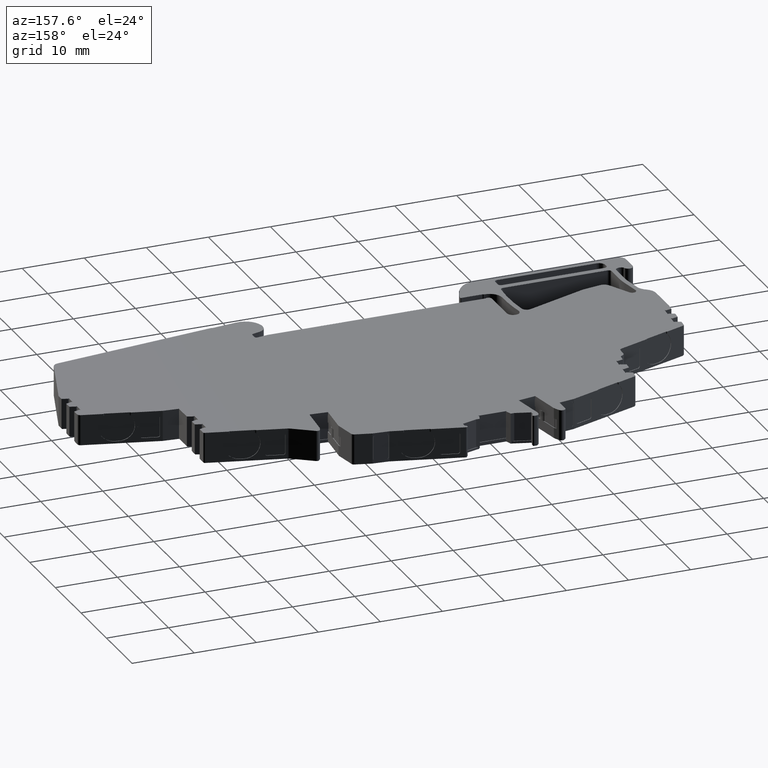
[diagram: clean part render]
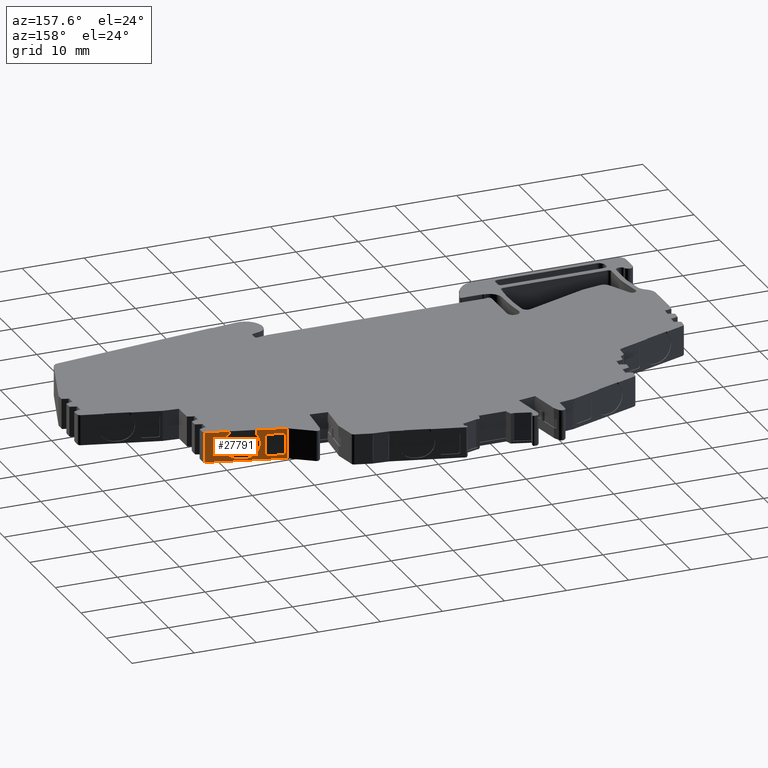
[diagram: same view with one face highlighted and labeled with its STEP entity id]
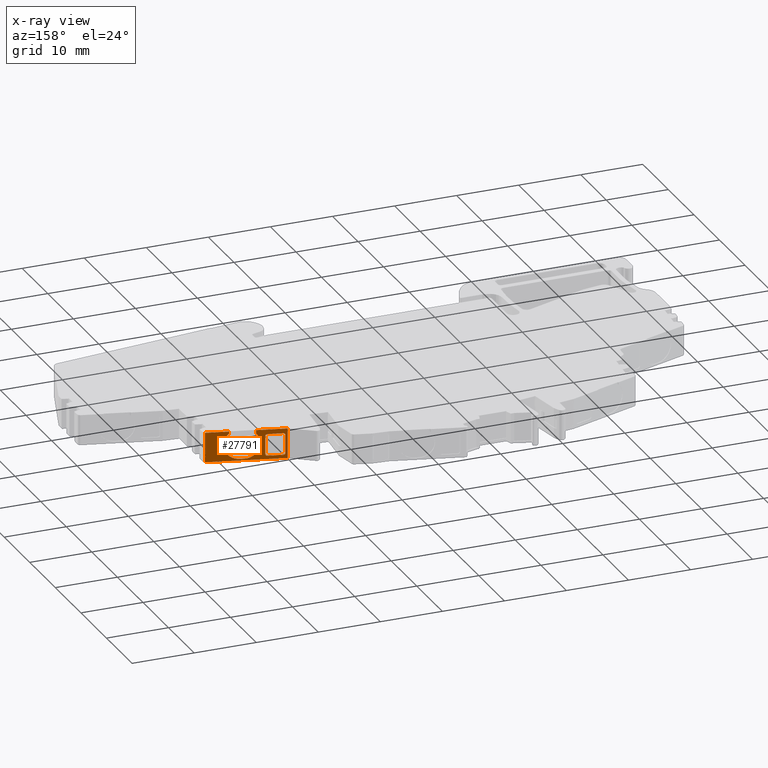
[diagram: x-ray of the same camera — body ghosted, the highlighted face saturated]
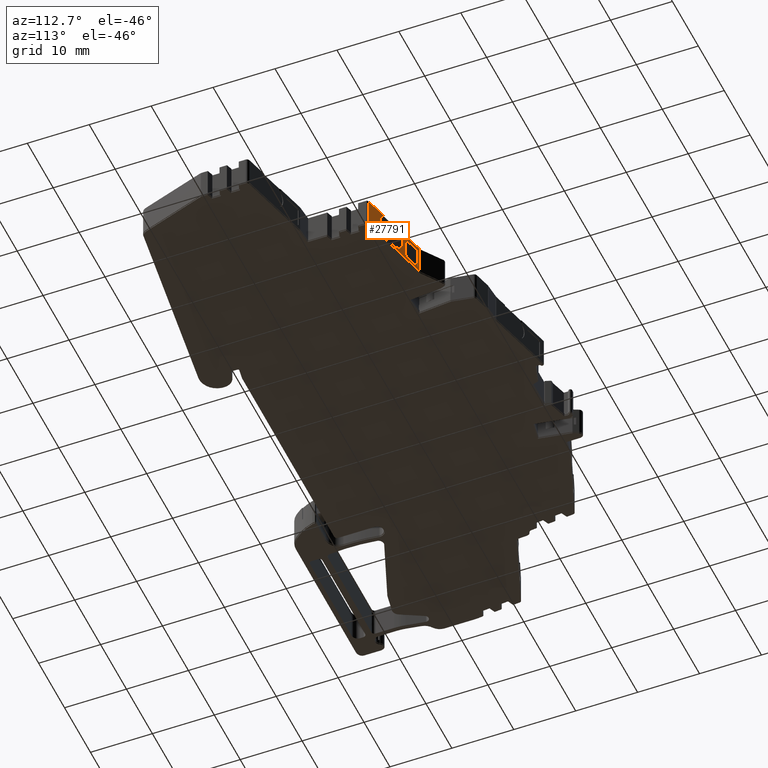
[diagram: same view with one face highlighted and labeled with its STEP entity id]
A machine part, auxiliary view. The second image highlights one B-rep face of the part: STEP entity #27791.
The next image is the same camera in x-ray: the body ghosted, the highlighted face saturated — about 0% of this face is hidden behind the body in this view.
A second angle (auxiliary view) of the same face is appended — the face is thin or edge-on in the first view.
In plain terms, the highlighted planar face has unit normal (-0.2592, -0.9658, 0).
Its self-contained STEP definition (entity closure, byte-faithful):
#186 = VECTOR ( 'NONE', #13042, 1000.000000000000000 ) ;
#674 = CARTESIAN_POINT ( 'NONE',  ( -15.61591712863480400, 12.21445229525749600, 24.37509204364099300 ) ) ;
#688 = ORIENTED_EDGE ( 'NONE', *, *, #3990, .F. ) ;
#1070 = EDGE_LOOP ( 'NONE', ( #7072, #12519, #18732, #15447, #688, #23701, #18821, #24131 ) ) ;
#1263 = EDGE_CURVE ( 'NONE', #18861, #17649, #20730, .T. ) ;
#1282 = VERTEX_POINT ( 'NONE', #9829 ) ;
#1288 = CARTESIAN_POINT ( 'NONE',  ( -18.24386508577786300, 12.91967311282621700, 21.17509204364099800 ) ) ;
#1443 = ORIENTED_EDGE ( 'NONE', *, *, #18065, .T. ) ;
#1605 = VECTOR ( 'NONE', #2083, 1000.000000000000000 ) ;
#2015 = CARTESIAN_POINT ( 'NONE',  ( -15.61591712863480000, 12.21445229525749600, 20.87509204364099300 ) ) ;
#2064 = CARTESIAN_POINT ( 'NONE',  ( -15.61591712863480400, 12.21445229525749600, 24.37509204364099300 ) ) ;
#2083 = DIRECTION ( 'NONE',  ( 0.0000000000000000000, 0.0000000000000000000, -1.000000000000000000 ) ) ;
#2742 = CARTESIAN_POINT ( 'NONE',  ( -18.24386508577786300, 12.91967311282621700, 24.07509204364099600 ) ) ;
#3017 = LINE ( 'NONE', #13011, #20755 ) ;
#3182 = CARTESIAN_POINT ( 'NONE',  ( -11.59844444603706000, 11.13634671022084900, 20.57509204364099300 ) ) ;
#3215 = CARTESIAN_POINT ( 'NONE',  ( -17.94565780241363500, 12.83964794200521600, 24.37509204364099300 ) ) ;
#3564 = EDGE_CURVE ( 'NONE', #15323, #29325, #24262, .T. ) ;
#3902 = DIRECTION ( 'NONE',  ( -0.9658279704094783200, 0.2591839724495090300, -0.0000000000000000000 ) ) ;
#3926 = ORIENTED_EDGE ( 'NONE', *, *, #11185, .T. ) ;
#3990 = EDGE_CURVE ( 'NONE', #18861, #8986, #29179, .T. ) ;
#4020 = DIRECTION ( 'NONE',  ( -0.0000000000000000000, -0.0000000000000000000, -1.000000000000000000 ) ) ;
#4063 = EDGE_CURVE ( 'NONE', #1282, #17649, #16856, .T. ) ;
#4161 = CARTESIAN_POINT ( 'NONE',  ( -18.24386508577786300, 12.91967311282621200, 24.25082797492906600 ) ) ;
#4311 = VERTEX_POINT ( 'NONE', #12755 ) ;
#4420 = CARTESIAN_POINT ( 'NONE',  ( -15.32167927772824400, 12.13549233822639200, 24.07509204364099600 ) ) ;
#4467 = CARTESIAN_POINT ( 'NONE',  ( -18.56393167721689300, 13.00556432032807700, 24.37509204364099300 ) ) ;
#4860 = EDGE_CURVE ( 'NONE', #21905, #12593, #29448, .T. ) ;
#5206 = EDGE_CURVE ( 'NONE', #21905, #17814, #3017, .T. ) ;
#5355 = CARTESIAN_POINT ( 'NONE',  ( -6.571322172358326200, 9.787297437679015400, 25.12509204364099700 ) ) ;
#5543 = AXIS2_PLACEMENT_3D ( 'NONE', #17181, #28929, #12808 ) ;
#5699 = CARTESIAN_POINT ( 'NONE',  ( -10.04479262381814700, 10.71941775038197000, 25.12509204364099700 ) ) ;
#5838 = DIRECTION ( 'NONE',  ( 0.0000000000000000000, 0.0000000000000000000, 1.000000000000000000 ) ) ;
#6318 = CARTESIAN_POINT ( 'NONE',  ( -14.61550843732582400, 11.94598844182762900, 22.97509204364098800 ) ) ;
#6321 = VECTOR ( 'NONE', #22928, 1000.000000000000000 ) ;
#6523 = ORIENTED_EDGE ( 'NONE', *, *, #22581, .F. ) ;
#6627 =( BOUNDED_CURVE ( )  B_SPLINE_CURVE ( 3, ( #20269, #24695, #27118, #6318 ),
 .UNSPECIFIED., .F., .F. ) 
 B_SPLINE_CURVE_WITH_KNOTS ( ( 4, 4 ),
 ( 5.539587366614141800, 6.283185307179586200 ),
 .UNSPECIFIED. ) 
 CURVE ( )  GEOMETRIC_REPRESENTATION_ITEM ( )  RATIONAL_B_SPLINE_CURVE ( ( 1.000000000000000000, 0.9544502012658107000, 0.9544502012658107000, 1.000000000000000000 ) ) 
 REPRESENTATION_ITEM ( '' )  );
#6911 = VERTEX_POINT ( 'NONE', #3182 ) ;
#7072 = ORIENTED_EDGE ( 'NONE', *, *, #25804, .F. ) ;
#7157 = VERTEX_POINT ( 'NONE', #3215 ) ;
#7283 = CARTESIAN_POINT ( 'NONE',  ( -18.56393167721689300, 13.00556432032807700, 20.32509204364099600 ) ) ;
#7436 = CARTESIAN_POINT ( 'NONE',  ( -6.571322172358326200, 9.787297437679015400, 20.32509204364099600 ) ) ;
#7657 = EDGE_CURVE ( 'NONE', #4311, #6911, #21203, .T. ) ;
#8031 = VECTOR ( 'NONE', #13108, 1000.000000000000000 ) ;
#8144 = VERTEX_POINT ( 'NONE', #16944 ) ;
#8207 = CARTESIAN_POINT ( 'NONE',  ( -14.61550843732582200, 11.94598844182763000, 21.56920459333641600 ) ) ;
#8870 = LINE ( 'NONE', #15781, #186 ) ;
#8986 = VERTEX_POINT ( 'NONE', #2742 ) ;
#9025 = VERTEX_POINT ( 'NONE', #674 ) ;
#9707 = VECTOR ( 'NONE', #28482, 1000.000000000000100 ) ;
#9829 = CARTESIAN_POINT ( 'NONE',  ( -15.61591712863480000, 12.21445229525749600, 20.87509204364099300 ) ) ;
#9902 = EDGE_CURVE ( 'NONE', #7157, #8986, #28795, .T. ) ;
#10648 = VECTOR ( 'NONE', #18355, 1000.000000000000000 ) ;
#10652 = ORIENTED_EDGE ( 'NONE', *, *, #27926, .T. ) ;
#10674 = CARTESIAN_POINT ( 'NONE',  ( -15.32167927772824400, 12.13549233822639200, 21.17509204364099800 ) ) ;
#11185 = EDGE_CURVE ( 'NONE', #6911, #20575, #11886, .T. ) ;
#11259 = CARTESIAN_POINT ( 'NONE',  ( -15.44355658613725200, 12.16819862331307300, 24.37509204364100100 ) ) ;
#11294 = CARTESIAN_POINT ( 'NONE',  ( -10.04479262381814700, 10.71941775038197300, 24.77806142693621900 ) ) ;
#11851 = VECTOR ( 'NONE', #15842, 1000.000000000000000 ) ;
#11886 =( BOUNDED_CURVE ( )  B_SPLINE_CURVE ( 3, ( #24822, #20592, #18225, #11294 ),
 .UNSPECIFIED., .F., .T. ) 
 B_SPLINE_CURVE_WITH_KNOTS ( ( 4, 4 ),
 ( 1.570796326794896600, 3.991527257231686700 ),
 .UNSPECIFIED. ) 
 CURVE ( )  GEOMETRIC_REPRESENTATION_ITEM ( )  RATIONAL_B_SPLINE_CURVE ( ( 1.000000000000000000, 0.5684516283634089000, 0.5684516283634089000, 1.000000000000000000 ) ) 
 REPRESENTATION_ITEM ( '' )  );
#11991 = FACE_BOUND ( 'NONE', #1070, .T. ) ;
#12208 = VERTEX_POINT ( 'NONE', #15884 ) ;
#12501 = VECTOR ( 'NONE', #4020, 1000.000000000000000 ) ;
#12519 = ORIENTED_EDGE ( 'NONE', *, *, #28581, .T. ) ;
#12571 = LINE ( 'NONE', #4467, #11851 ) ;
#12593 = VERTEX_POINT ( 'NONE', #5699 ) ;
#12755 = CARTESIAN_POINT ( 'NONE',  ( -12.26160563598441300, 11.31430878716507500, 20.57509204364098900 ) ) ;
#12808 = DIRECTION ( 'NONE',  ( 0.9658279704094783200, -0.2591839724495090300, 0.0000000000000000000 ) ) ;
#13011 = CARTESIAN_POINT ( 'NONE',  ( -6.571322172358326200, 9.787297437679015400, 25.17509204364099800 ) ) ;
#13042 = DIRECTION ( 'NONE',  ( 0.0000000000000000000, 0.0000000000000000000, -1.000000000000000000 ) ) ;
#13108 = DIRECTION ( 'NONE',  ( 0.9658279704094783200, -0.2591839724495090300, 9.474192395200493500E-015 ) ) ;
#13120 = CARTESIAN_POINT ( 'NONE',  ( -18.56393167721689300, 13.00556432032807700, 25.17509204364099800 ) ) ;
#13210 = CARTESIAN_POINT ( 'NONE',  ( -18.56393167721685000, 13.00556432032806400, 20.57509204364092900 ) ) ;
#13374 = VERTEX_POINT ( 'NONE', #18484 ) ;
#13434 = EDGE_CURVE ( 'NONE', #9025, #7157, #12571, .T. ) ;
#13842 = VECTOR ( 'NONE', #20096, 1000.000000000000000 ) ;
#13912 = CARTESIAN_POINT ( 'NONE',  ( -18.56393167721689300, 13.00556432032807700, 25.12509204364099700 ) ) ;
#13958 = LINE ( 'NONE', #19675, #25620 ) ;
#14004 =( BOUNDED_CURVE ( )  B_SPLINE_CURVE ( 3, ( #2015, #29856, #23081, #29762 ),
 .UNSPECIFIED., .F., .F. ) 
 B_SPLINE_CURVE_WITH_KNOTS ( ( 4, 4 ),
 ( 4.712388980384683500, 6.283185307179586200 ),
 .UNSPECIFIED. ) 
 CURVE ( )  GEOMETRIC_REPRESENTATION_ITEM ( )  RATIONAL_B_SPLINE_CURVE ( ( 1.000000000000000000, 0.8047378541243634900, 0.8047378541243634900, 1.000000000000000000 ) ) 
 REPRESENTATION_ITEM ( '' )  );
#14899 = FACE_OUTER_BOUND ( 'NONE', #18383, .T. ) ;
#15026 = LINE ( 'NONE', #13120, #12501 ) ;
#15245 = CARTESIAN_POINT ( 'NONE',  ( -14.61550843732582400, 11.94598844182762900, 22.97509204364098800 ) ) ;
#15323 = VERTEX_POINT ( 'NONE', #28154 ) ;
#15447 = ORIENTED_EDGE ( 'NONE', *, *, #9902, .T. ) ;
#15781 = CARTESIAN_POINT ( 'NONE',  ( -15.32167927772824400, 12.13549233822639200, 25.17509204364099800 ) ) ;
#15842 = DIRECTION ( 'NONE',  ( -0.9658279704094783200, 0.2591839724495090300, 0.0000000000000000000 ) ) ;
#15884 = CARTESIAN_POINT ( 'NONE',  ( -15.32167927772824400, 12.13549233822639200, 24.07509204364099600 ) ) ;
#16378 = ORIENTED_EDGE ( 'NONE', *, *, #4860, .F. ) ;
#16735 = CARTESIAN_POINT ( 'NONE',  ( -18.24386508577786300, 12.91967311282622400, 20.99935611235292800 ) ) ;
#16852 = EDGE_CURVE ( 'NONE', #1282, #27355, #14004, .T. ) ;
#16856 = LINE ( 'NONE', #25271, #10648 ) ;
#16944 = CARTESIAN_POINT ( 'NONE',  ( -14.61550843732582400, 11.94598844182762900, 22.97509204364098800 ) ) ;
#17181 = CARTESIAN_POINT ( 'NONE',  ( -18.56393167721689300, 13.00556432032807700, 25.17509204364099800 ) ) ;
#17649 = VERTEX_POINT ( 'NONE', #27363 ) ;
#17814 = VERTEX_POINT ( 'NONE', #7436 ) ;
#17950 = CARTESIAN_POINT ( 'NONE',  ( -18.24386508577786300, 12.91967311282621700, 24.07509204364099600 ) ) ;
#18065 = EDGE_CURVE ( 'NONE', #20575, #12593, #13958, .T. ) ;
#18225 = CARTESIAN_POINT ( 'NONE',  ( -8.104182214791510600, 10.19864683651504000, 23.03966374073549900 ) ) ;
#18355 = DIRECTION ( 'NONE',  ( -0.9658279704094783200, 0.2591839724495090300, 0.0000000000000000000 ) ) ;
#18383 = EDGE_LOOP ( 'NONE', ( #16378, #21679, #27295, #6523, #20444, #22428, #10652, #24149, #30045, #3926, #1443 ) ) ;
#18484 = CARTESIAN_POINT ( 'NONE',  ( -13.99416692543901200, 11.77924885027248600, 24.59974926163182800 ) ) ;
#18732 = ORIENTED_EDGE ( 'NONE', *, *, #13434, .T. ) ;
#18821 = ORIENTED_EDGE ( 'NONE', *, *, #4063, .F. ) ;
#18861 = VERTEX_POINT ( 'NONE', #1288 ) ;
#19047 = CARTESIAN_POINT ( 'NONE',  ( -10.04479262381814700, 10.71941775038197300, 24.77806142693621900 ) ) ;
#19567 = EDGE_CURVE ( 'NONE', #8144, #4311, #27324, .T. ) ;
#19675 = CARTESIAN_POINT ( 'NONE',  ( -10.04479262381814700, 10.71941775038197300, 25.17509204364099800 ) ) ;
#19760 = EDGE_CURVE ( 'NONE', #15323, #13374, #24098, .T. ) ;
#20027 = CARTESIAN_POINT ( 'NONE',  ( -17.94565780241363500, 12.83964794200521600, 24.37509204364099300 ) ) ;
#20061 = DIRECTION ( 'NONE',  ( -0.0000000000000000000, -0.0000000000000000000, -1.000000000000000000 ) ) ;
#20096 = DIRECTION ( 'NONE',  ( -0.9658279704094783200, 0.2591839724495090300, -0.0000000000000000000 ) ) ;
#20253 =( BOUNDED_CURVE ( )  B_SPLINE_CURVE ( 3, ( #4420, #20703, #11259, #2064 ),
 .UNSPECIFIED., .F., .F. ) 
 B_SPLINE_CURVE_WITH_KNOTS ( ( 4, 4 ),
 ( 3.141592653589793100, 4.712388980384689700 ),
 .UNSPECIFIED. ) 
 CURVE ( )  GEOMETRIC_REPRESENTATION_ITEM ( )  RATIONAL_B_SPLINE_CURVE ( ( 1.000000000000000000, 0.8047378541243649400, 0.8047378541243649400, 1.000000000000000000 ) ) 
 REPRESENTATION_ITEM ( '' )  );
#20269 = CARTESIAN_POINT ( 'NONE',  ( -13.99416692543901200, 11.77924885027248600, 24.59974926163182800 ) ) ;
#20444 = ORIENTED_EDGE ( 'NONE', *, *, #3564, .F. ) ;
#20575 = VERTEX_POINT ( 'NONE', #19047 ) ;
#20592 = CARTESIAN_POINT ( 'NONE',  ( -9.015225327167918600, 10.44312906334304500, 20.57509204364099600 ) ) ;
#20703 = CARTESIAN_POINT ( 'NONE',  ( -15.32167927772824500, 12.13549233822639400, 24.25082797492906600 ) ) ;
#20730 =( BOUNDED_CURVE ( )  B_SPLINE_CURVE ( 3, ( #21361, #16735, #23756, #26106 ),
 .UNSPECIFIED., .F., .F. ) 
 B_SPLINE_CURVE_WITH_KNOTS ( ( 4, 4 ),
 ( 0.0000000000000000000, 1.570796326794902600 ),
 .UNSPECIFIED. ) 
 CURVE ( )  GEOMETRIC_REPRESENTATION_ITEM ( )  RATIONAL_B_SPLINE_CURVE ( ( 1.000000000000000000, 0.8047378541243636100, 0.8047378541243636100, 1.000000000000000000 ) ) 
 REPRESENTATION_ITEM ( '' )  );
#20755 = VECTOR ( 'NONE', #20061, 1000.000000000000000 ) ;
#21203 = LINE ( 'NONE', #13210, #8031 ) ;
#21361 = CARTESIAN_POINT ( 'NONE',  ( -18.24386508577786300, 12.91967311282621700, 21.17509204364099800 ) ) ;
#21679 = ORIENTED_EDGE ( 'NONE', *, *, #5206, .T. ) ;
#21705 = PLANE ( 'NONE',  #5543 ) ;
#21804 = EDGE_CURVE ( 'NONE', #27588, #17814, #28932, .T. ) ;
#21905 = VERTEX_POINT ( 'NONE', #5355 ) ;
#22428 = ORIENTED_EDGE ( 'NONE', *, *, #19760, .T. ) ;
#22517 = CARTESIAN_POINT ( 'NONE',  ( -18.56393167721689300, 13.00556432032807700, 25.12509204364099700 ) ) ;
#22552 = CARTESIAN_POINT ( 'NONE',  ( -18.12034358460996200, 12.88652560174093300, 24.37509204364100100 ) ) ;
#22581 = EDGE_CURVE ( 'NONE', #29325, #27588, #15026, .T. ) ;
#22647 = CARTESIAN_POINT ( 'NONE',  ( -18.56393167721689300, 13.00556432032807700, 25.12509204364099700 ) ) ;
#22928 = DIRECTION ( 'NONE',  ( 0.0000000000000000000, 0.0000000000000000000, 1.000000000000000000 ) ) ;
#23081 = CARTESIAN_POINT ( 'NONE',  ( -15.32167927772823800, 12.13549233822638500, 20.99935611235292000 ) ) ;
#23701 = ORIENTED_EDGE ( 'NONE', *, *, #1263, .T. ) ;
#23756 = CARTESIAN_POINT ( 'NONE',  ( -18.12034358460996200, 12.88652560174094000, 20.87509204364099300 ) ) ;
#24098 = LINE ( 'NONE', #29913, #1605 ) ;
#24131 = ORIENTED_EDGE ( 'NONE', *, *, #16852, .T. ) ;
#24149 = ORIENTED_EDGE ( 'NONE', *, *, #19567, .T. ) ;
#24262 = LINE ( 'NONE', #13912, #27225 ) ;
#24695 = CARTESIAN_POINT ( 'NONE',  ( -14.39851038229799200, 11.88775610683728200, 24.15149676823645200 ) ) ;
#24785 = CARTESIAN_POINT ( 'NONE',  ( -12.26160563598441300, 11.31430878716507500, 20.57509204364098900 ) ) ;
#24822 = CARTESIAN_POINT ( 'NONE',  ( -11.59844444603706000, 11.13634671022084900, 20.57509204364099300 ) ) ;
#25271 = CARTESIAN_POINT ( 'NONE',  ( -18.56393167721689300, 13.00556432032807700, 20.87509204364099300 ) ) ;
#25492 = CARTESIAN_POINT ( 'NONE',  ( -18.24386508577786300, 12.91967311282621700, 25.17509204364099800 ) ) ;
#25620 = VECTOR ( 'NONE', #5838, 1000.000000000000000 ) ;
#25804 = EDGE_CURVE ( 'NONE', #12208, #27355, #8870, .T. ) ;
#26106 = CARTESIAN_POINT ( 'NONE',  ( -17.94565780241363500, 12.83964794200521600, 20.87509204364099300 ) ) ;
#26822 = CARTESIAN_POINT ( 'NONE',  ( -13.64048997250218800, 11.68433816179124600, 20.57509204364099300 ) ) ;
#27118 = CARTESIAN_POINT ( 'NONE',  ( -14.61550843732582400, 11.94598844182762900, 23.58409953234219400 ) ) ;
#27225 = VECTOR ( 'NONE', #3902, 1000.000000000000000 ) ;
#27295 = ORIENTED_EDGE ( 'NONE', *, *, #21804, .F. ) ;
#27324 =( BOUNDED_CURVE ( )  B_SPLINE_CURVE ( 3, ( #15245, #8207, #26822, #24785 ),
 .UNSPECIFIED., .F., .F. ) 
 B_SPLINE_CURVE_WITH_KNOTS ( ( 4, 4 ),
 ( 0.0000000000000000000, 1.570796326794896600 ),
 .UNSPECIFIED. ) 
 CURVE ( )  GEOMETRIC_REPRESENTATION_ITEM ( )  RATIONAL_B_SPLINE_CURVE ( ( 1.000000000000000000, 0.8047378541243649400, 0.8047378541243649400, 1.000000000000000000 ) ) 
 REPRESENTATION_ITEM ( '' )  );
#27355 = VERTEX_POINT ( 'NONE', #10674 ) ;
#27363 = CARTESIAN_POINT ( 'NONE',  ( -17.94565780241363500, 12.83964794200521600, 20.87509204364099300 ) ) ;
#27588 = VERTEX_POINT ( 'NONE', #29959 ) ;
#27791 = ADVANCED_FACE ( 'NONE', ( #11991, #14899 ), #21705, .F. ) ;
#27926 = EDGE_CURVE ( 'NONE', #13374, #8144, #6627, .T. ) ;
#28154 = CARTESIAN_POINT ( 'NONE',  ( -13.99416692543901200, 11.77924885027248600, 25.12509204364099700 ) ) ;
#28482 = DIRECTION ( 'NONE',  ( 0.9658279704094783200, -0.2591839724495090800, 0.0000000000000000000 ) ) ;
#28581 = EDGE_CURVE ( 'NONE', #12208, #9025, #20253, .T. ) ;
#28795 =( BOUNDED_CURVE ( )  B_SPLINE_CURVE ( 3, ( #20027, #22552, #4161, #17950 ),
 .UNSPECIFIED., .F., .F. ) 
 B_SPLINE_CURVE_WITH_KNOTS ( ( 4, 4 ),
 ( 1.570796326794896600, 3.141592653589793100 ),
 .UNSPECIFIED. ) 
 CURVE ( )  GEOMETRIC_REPRESENTATION_ITEM ( )  RATIONAL_B_SPLINE_CURVE ( ( 1.000000000000000000, 0.8047378541243649400, 0.8047378541243649400, 1.000000000000000000 ) ) 
 REPRESENTATION_ITEM ( '' )  );
#28929 = DIRECTION ( 'NONE',  ( -0.2591839724495090300, -0.9658279704094783200, 0.0000000000000000000 ) ) ;
#28932 = LINE ( 'NONE', #7283, #9707 ) ;
#29179 = LINE ( 'NONE', #25492, #6321 ) ;
#29325 = VERTEX_POINT ( 'NONE', #22647 ) ;
#29448 = LINE ( 'NONE', #22517, #13842 ) ;
#29762 = CARTESIAN_POINT ( 'NONE',  ( -15.32167927772824400, 12.13549233822639200, 21.17509204364099800 ) ) ;
#29856 = CARTESIAN_POINT ( 'NONE',  ( -15.44355658613725000, 12.16819862331306400, 20.87509204364099300 ) ) ;
#29913 = CARTESIAN_POINT ( 'NONE',  ( -13.99416692543901200, 11.77924885027248600, 25.17509204364099800 ) ) ;
#29959 = CARTESIAN_POINT ( 'NONE',  ( -18.56393167721689300, 13.00556432032807700, 20.32509204364099600 ) ) ;
#30045 = ORIENTED_EDGE ( 'NONE', *, *, #7657, .T. ) ;